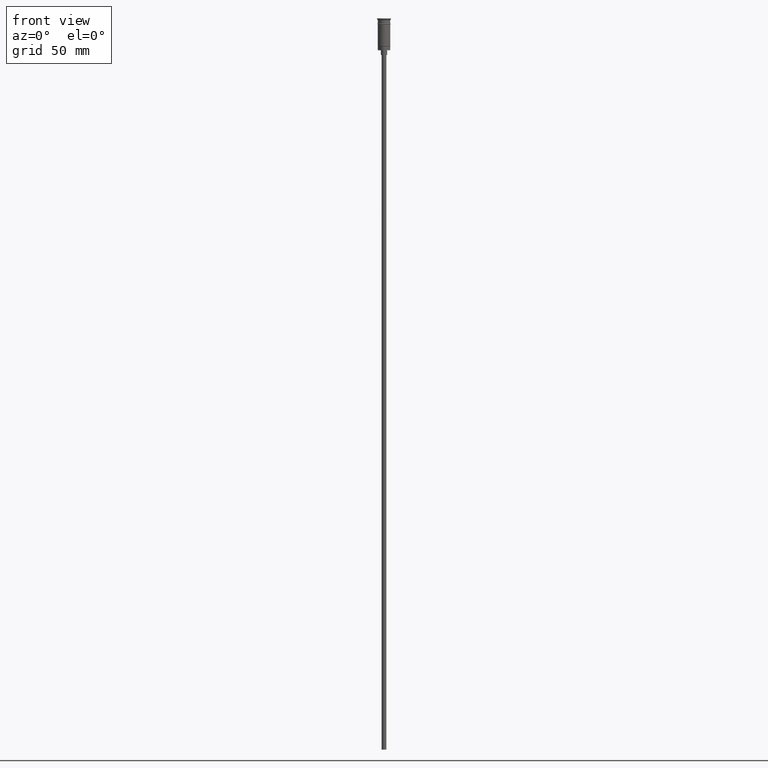
[diagram: clean part render]
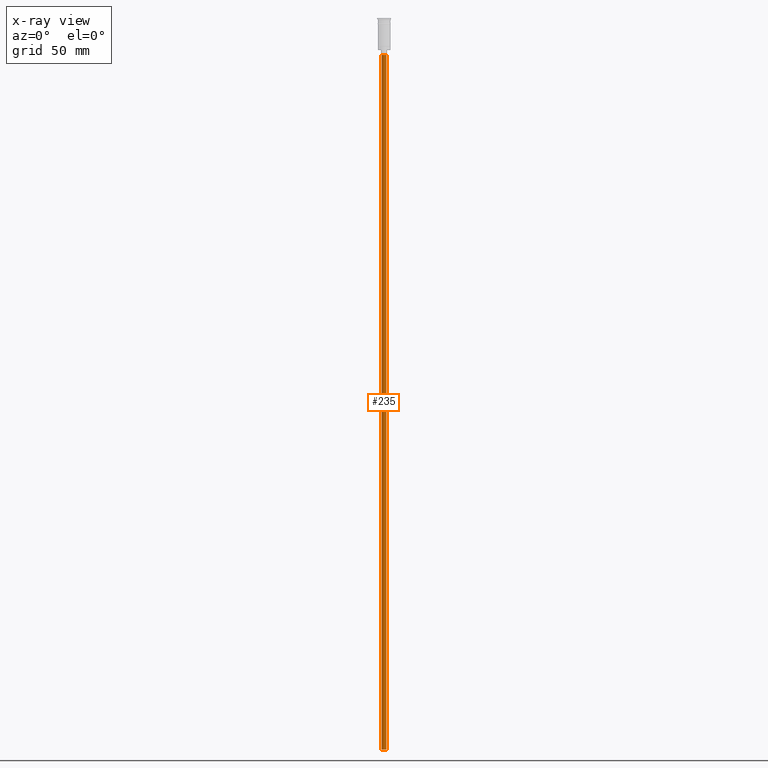
[diagram: x-ray — body ghosted, one internal face saturated and labeled with its STEP entity id]
A machine part, front view, then the same camera in x-ray: the body is ghosted and one INTERNAL B-rep face — a face not visible from any outside direction — is saturated and labeled: STEP entity #235.
In plain terms, the highlighted cylindrical surface (edge-blend (fillet) strip) has radius 1.5 mm, axis along (-0, -0, 1).
Its self-contained STEP definition (entity closure, byte-faithful):
#15 = EDGE_CURVE ( 'NONE', #540, #1067, #1088, .T. ) ;
#137 = EDGE_CURVE ( 'NONE', #540, #623, #1500, .T. ) ;
#142 = DIRECTION ( 'NONE',  ( 1.000000000000000000, 0.000000000000000000, 0.000000000000000000 ) ) ;
#148 = FACE_OUTER_BOUND ( 'NONE', #416, .T. ) ;
#226 = AXIS2_PLACEMENT_3D ( 'NONE', #1525, #1248, #142 ) ;
#235 = ADVANCED_FACE ( 'NONE', ( #148 ), #1147, .T. ) ;
#258 = EDGE_CURVE ( 'NONE', #623, #414, #791, .T. ) ;
#304 = VECTOR ( 'NONE', #883, 1000.000000000000000 ) ;
#355 = DIRECTION ( 'NONE',  ( -0.000000000000000000, -0.000000000000000000, 1.000000000000000000 ) ) ;
#414 = VERTEX_POINT ( 'NONE', #1548 ) ;
#416 = EDGE_LOOP ( 'NONE', ( #661, #581, #732, #1279 ) ) ;
#540 = VERTEX_POINT ( 'NONE', #621 ) ;
#568 = AXIS2_PLACEMENT_3D ( 'NONE', #1533, #1540, #1403 ) ;
#581 = ORIENTED_EDGE ( 'NONE', *, *, #137, .F. ) ;
#621 = CARTESIAN_POINT ( 'NONE',  ( 1.500000000000000222, 0.000000000000000000, -470.5000000000000568 ) ) ;
#623 = VERTEX_POINT ( 'NONE', #907 ) ;
#650 = CIRCLE ( 'NONE', #568, 1.500000000000000222 ) ;
#661 = ORIENTED_EDGE ( 'NONE', *, *, #258, .F. ) ;
#732 = ORIENTED_EDGE ( 'NONE', *, *, #15, .T. ) ;
#791 = LINE ( 'NONE', #1278, #304 ) ;
#883 = DIRECTION ( 'NONE',  ( -0.000000000000000000, -0.000000000000000000, 1.000000000000000000 ) ) ;
#907 = CARTESIAN_POINT ( 'NONE',  ( -1.500000000000000222, 1.836970198721030181E-16, -470.5000000000000568 ) ) ;
#1067 = VERTEX_POINT ( 'NONE', #1258 ) ;
#1088 = LINE ( 'NONE', #1483, #1358 ) ;
#1107 = CARTESIAN_POINT ( 'NONE',  ( 0.000000000000000000, 0.000000000000000000, -470.5000000000000568 ) ) ;
#1147 = CYLINDRICAL_SURFACE ( 'NONE', #226, 1.500000000000000222 ) ;
#1248 = DIRECTION ( 'NONE',  ( -0.000000000000000000, -0.000000000000000000, 1.000000000000000000 ) ) ;
#1258 = CARTESIAN_POINT ( 'NONE',  ( 1.500000000000000222, 0.000000000000000000, -23.49999999999999645 ) ) ;
#1278 = CARTESIAN_POINT ( 'NONE',  ( -1.500000000000000222, 1.836970198721030181E-16, -470.5000000000000568 ) ) ;
#1279 = ORIENTED_EDGE ( 'NONE', *, *, #1470, .T. ) ;
#1288 = AXIS2_PLACEMENT_3D ( 'NONE', #1107, #1602, #1353 ) ;
#1353 = DIRECTION ( 'NONE',  ( -1.000000000000000000, 0.000000000000000000, 0.000000000000000000 ) ) ;
#1358 = VECTOR ( 'NONE', #355, 1000.000000000000000 ) ;
#1403 = DIRECTION ( 'NONE',  ( -1.000000000000000000, 0.000000000000000000, 0.000000000000000000 ) ) ;
#1470 = EDGE_CURVE ( 'NONE', #1067, #414, #650, .T. ) ;
#1483 = CARTESIAN_POINT ( 'NONE',  ( 1.500000000000000222, 0.000000000000000000, -470.5000000000000568 ) ) ;
#1500 = CIRCLE ( 'NONE', #1288, 1.500000000000000222 ) ;
#1525 = CARTESIAN_POINT ( 'NONE',  ( 0.000000000000000000, 0.000000000000000000, -470.5000000000000568 ) ) ;
#1533 = CARTESIAN_POINT ( 'NONE',  ( 0.000000000000000000, 0.000000000000000000, -23.49999999999999645 ) ) ;
#1540 = DIRECTION ( 'NONE',  ( 0.000000000000000000, 0.000000000000000000, -1.000000000000000000 ) ) ;
#1548 = CARTESIAN_POINT ( 'NONE',  ( -1.500000000000000222, 1.836970198721030181E-16, -23.49999999999999645 ) ) ;
#1602 = DIRECTION ( 'NONE',  ( 0.000000000000000000, 0.000000000000000000, -1.000000000000000000 ) ) ;